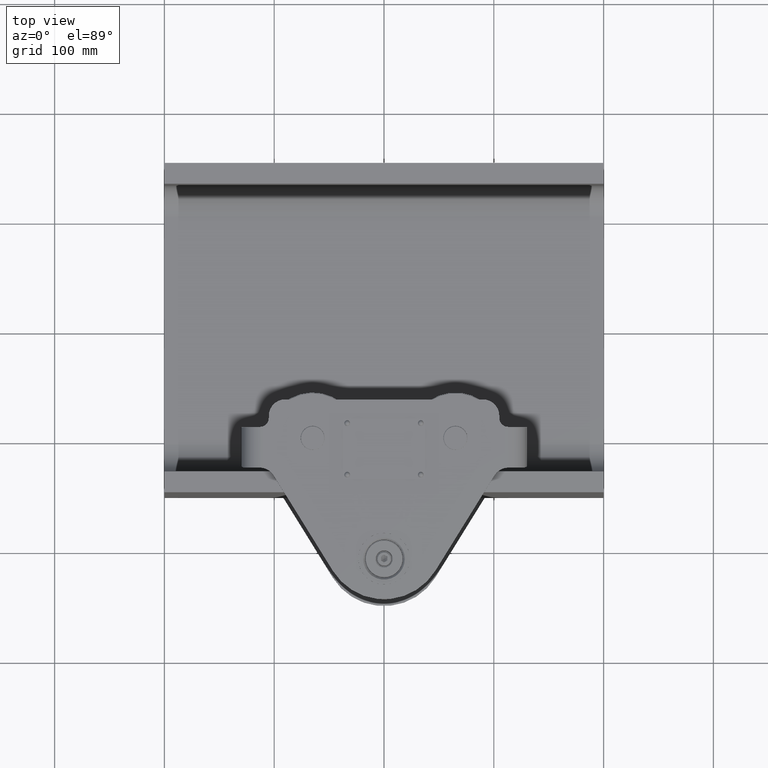
[diagram: clean part render]
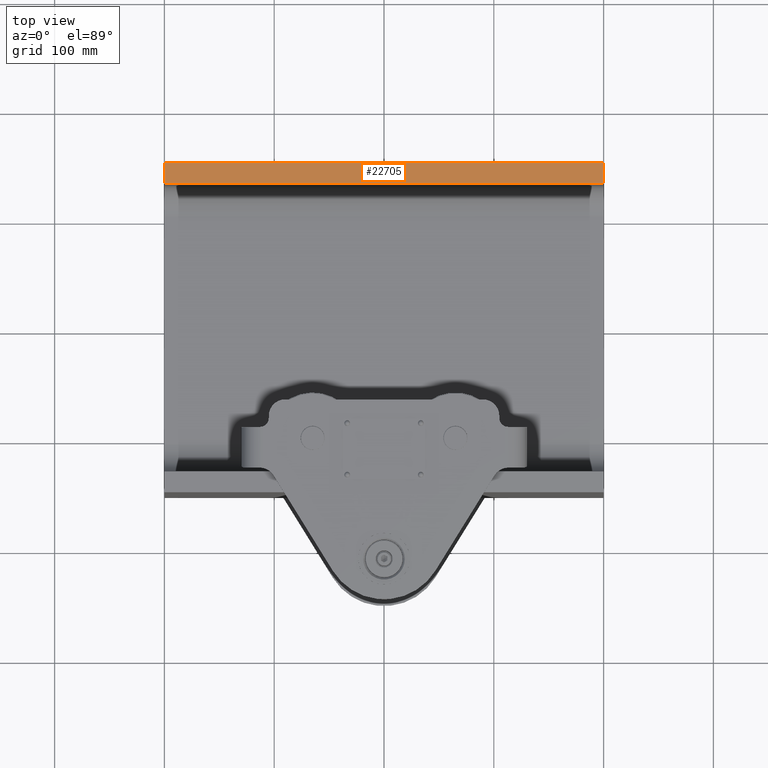
[diagram: same view with one face highlighted and labeled with its STEP entity id]
A machine part, top view. The second image highlights one B-rep face of the part: STEP entity #22705.
In plain terms, the highlighted planar face has unit normal (0, 0, -1).
Its self-contained STEP definition (entity closure, byte-faithful):
#3670 = FACE_OUTER_BOUND ( 'NONE', #14897, .T. ) ;
#4620 = EDGE_CURVE ( 'NONE', #50008, #48287, #8777, .T. ) ;
#6641 = VERTEX_POINT ( 'NONE', #16376 ) ;
#7869 = EDGE_CURVE ( 'NONE', #15479, #48287, #26804, .T. ) ;
#8777 = LINE ( 'NONE', #34966, #51728 ) ;
#10078 = DIRECTION ( 'NONE',  ( 1.000000000000000000, 0.0000000000000000000, 0.0000000000000000000 ) ) ;
#10237 = VECTOR ( 'NONE', #43298, 1000.000000000000000 ) ;
#10597 = CARTESIAN_POINT ( 'NONE',  ( 200.0000000000000000, 130.9999999999999400, 150.0000000000000300 ) ) ;
#10688 = CARTESIAN_POINT ( 'NONE',  ( -200.0000000000000000, 130.9999999999999400, 150.0000000000000300 ) ) ;
#11212 = CARTESIAN_POINT ( 'NONE',  ( -200.0000000000000000, 130.9999999999999400, 150.0000000000000300 ) ) ;
#11494 = CARTESIAN_POINT ( 'NONE',  ( 200.0000000000000000, 130.9999999999999400, 150.0000000000000300 ) ) ;
#14853 = EDGE_CURVE ( 'NONE', #6641, #15479, #50580, .T. ) ;
#14897 = EDGE_LOOP ( 'NONE', ( #21965, #25541, #48949, #23846 ) ) ;
#15479 = VERTEX_POINT ( 'NONE', #11494 ) ;
#16376 = CARTESIAN_POINT ( 'NONE',  ( -200.0000000000000000, 130.9999999999999400, 150.0000000000000300 ) ) ;
#18432 = AXIS2_PLACEMENT_3D ( 'NONE', #11212, #23202, #48814 ) ;
#21965 = ORIENTED_EDGE ( 'NONE', *, *, #7869, .T. ) ;
#22496 = VECTOR ( 'NONE', #33704, 1000.000000000000000 ) ;
#22705 = ADVANCED_FACE ( 'NONE', ( #3670 ), #36053, .F. ) ;
#23202 = DIRECTION ( 'NONE',  ( 0.0000000000000000000, 0.0000000000000000000, -1.000000000000000000 ) ) ;
#23846 = ORIENTED_EDGE ( 'NONE', *, *, #14853, .T. ) ;
#25541 = ORIENTED_EDGE ( 'NONE', *, *, #4620, .F. ) ;
#25794 = CARTESIAN_POINT ( 'NONE',  ( 200.0000000000000000, 150.0000000000000300, 150.0000000000000300 ) ) ;
#26770 = DIRECTION ( 'NONE',  ( 0.0000000000000000000, 1.000000000000000000, 0.0000000000000000000 ) ) ;
#26804 = LINE ( 'NONE', #10597, #28804 ) ;
#28804 = VECTOR ( 'NONE', #26770, 1000.000000000000000 ) ;
#32860 = LINE ( 'NONE', #49927, #22496 ) ;
#33704 = DIRECTION ( 'NONE',  ( 0.0000000000000000000, 1.000000000000000000, 0.0000000000000000000 ) ) ;
#34966 = CARTESIAN_POINT ( 'NONE',  ( -200.0000000000000000, 150.0000000000000300, 150.0000000000000300 ) ) ;
#36053 = PLANE ( 'NONE',  #18432 ) ;
#42055 = EDGE_CURVE ( 'NONE', #6641, #50008, #32860, .T. ) ;
#43298 = DIRECTION ( 'NONE',  ( 1.000000000000000000, 0.0000000000000000000, 0.0000000000000000000 ) ) ;
#44225 = CARTESIAN_POINT ( 'NONE',  ( -200.0000000000000000, 150.0000000000000300, 150.0000000000000300 ) ) ;
#48287 = VERTEX_POINT ( 'NONE', #25794 ) ;
#48814 = DIRECTION ( 'NONE',  ( -1.000000000000000000, 0.0000000000000000000, 0.0000000000000000000 ) ) ;
#48949 = ORIENTED_EDGE ( 'NONE', *, *, #42055, .F. ) ;
#49927 = CARTESIAN_POINT ( 'NONE',  ( -200.0000000000000000, 130.9999999999999400, 150.0000000000000300 ) ) ;
#50008 = VERTEX_POINT ( 'NONE', #44225 ) ;
#50580 = LINE ( 'NONE', #10688, #10237 ) ;
#51728 = VECTOR ( 'NONE', #10078, 1000.000000000000000 ) ;